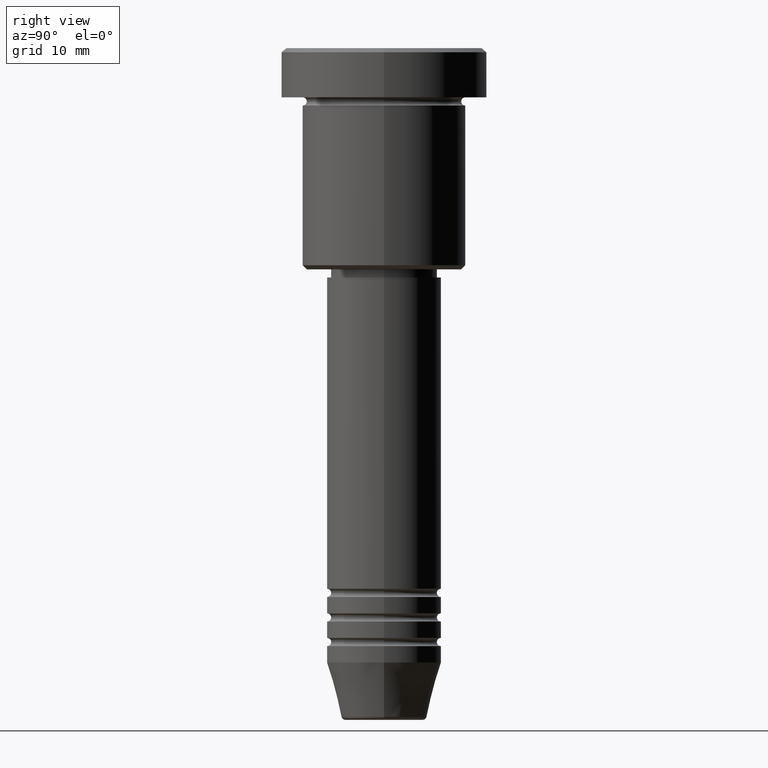
[diagram: clean part render]
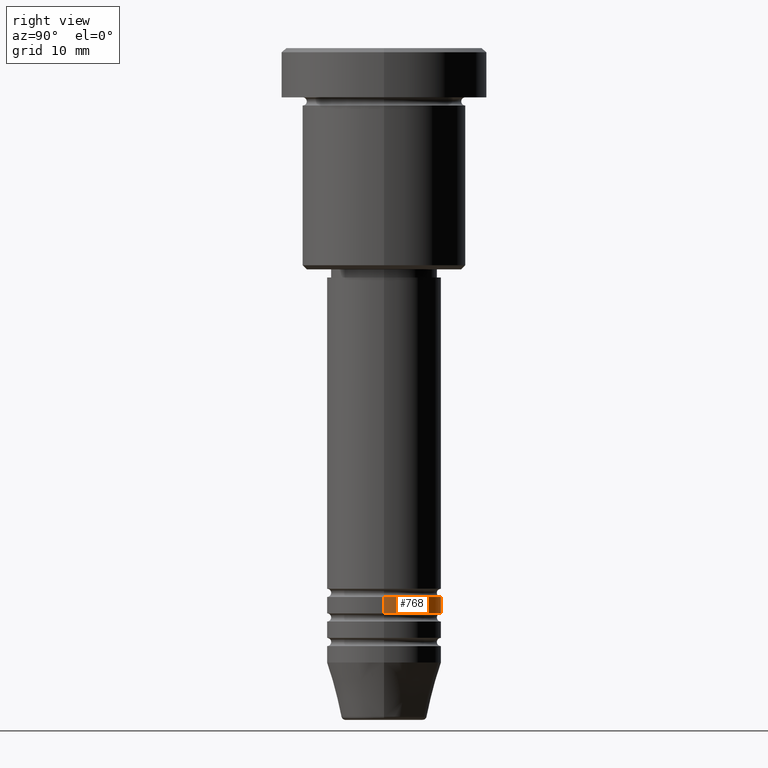
[diagram: same view with one face highlighted and labeled with its STEP entity id]
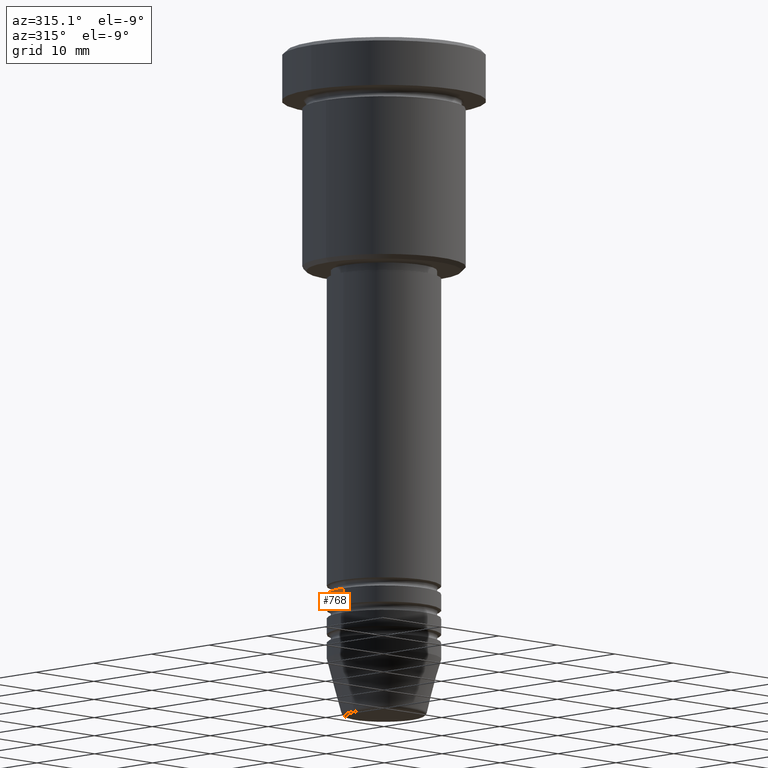
[diagram: same view with one face highlighted and labeled with its STEP entity id]
A machine part, right view. The second image highlights one B-rep face of the part: STEP entity #768.
A second angle (auxiliary view) of the same face is appended — the face is thin or edge-on in the first view.
In plain terms, the highlighted cylindrical surface (partial cylindrical patch) has radius 7 mm, axis along (-0, -0, 1).
Its self-contained STEP definition (entity closure, byte-faithful):
#37 = DIRECTION ( 'NONE',  ( -0.000000000000000000, -0.000000000000000000, 1.000000000000000000 ) ) ;
#57 = DIRECTION ( 'NONE',  ( -0.000000000000000000, -0.000000000000000000, 1.000000000000000000 ) ) ;
#61 = ORIENTED_EDGE ( 'NONE', *, *, #954, .F. ) ;
#83 = EDGE_CURVE ( 'NONE', #144, #342, #811, .T. ) ;
#144 = VERTEX_POINT ( 'NONE', #664 ) ;
#164 = AXIS2_PLACEMENT_3D ( 'NONE', #420, #415, #1149 ) ;
#173 = ORIENTED_EDGE ( 'NONE', *, *, #227, .F. ) ;
#188 = DIRECTION ( 'NONE',  ( 1.000000000000000000, 0.000000000000000000, 0.000000000000000000 ) ) ;
#227 = EDGE_CURVE ( 'NONE', #144, #819, #337, .T. ) ;
#231 = ORIENTED_EDGE ( 'NONE', *, *, #941, .T. ) ;
#249 = LINE ( 'NONE', #1061, #257 ) ;
#257 = VECTOR ( 'NONE', #57, 1000.000000000000000 ) ;
#337 = LINE ( 'NONE', #1067, #615 ) ;
#342 = VERTEX_POINT ( 'NONE', #543 ) ;
#415 = DIRECTION ( 'NONE',  ( -0.000000000000000000, -0.000000000000000000, 1.000000000000000000 ) ) ;
#420 = CARTESIAN_POINT ( 'NONE',  ( 0.000000000000000000, 0.000000000000000000, -66.99999999999998579 ) ) ;
#424 = EDGE_LOOP ( 'NONE', ( #817, #231, #61, #173 ) ) ;
#448 = CYLINDRICAL_SURFACE ( 'NONE', #1136, 7.000000000000000000 ) ;
#479 = CARTESIAN_POINT ( 'NONE',  ( 0.000000000000000000, 0.000000000000000000, -68.99999999999998579 ) ) ;
#503 = DIRECTION ( 'NONE',  ( -0.000000000000000000, -0.000000000000000000, 1.000000000000000000 ) ) ;
#543 = CARTESIAN_POINT ( 'NONE',  ( -7.000000000000000000, 8.572527594031473190E-16, -68.99999999999998579 ) ) ;
#615 = VECTOR ( 'NONE', #503, 1000.000000000000000 ) ;
#644 = CARTESIAN_POINT ( 'NONE',  ( 7.000000000000000000, 0.000000000000000000, -66.99999999999998579 ) ) ;
#664 = CARTESIAN_POINT ( 'NONE',  ( 7.000000000000000000, 0.000000000000000000, -68.99999999999998579 ) ) ;
#720 = FACE_OUTER_BOUND ( 'NONE', #424, .T. ) ;
#768 = ADVANCED_FACE ( 'NONE', ( #720 ), #448, .T. ) ;
#811 = CIRCLE ( 'NONE', #1017, 7.000000000000000000 ) ;
#817 = ORIENTED_EDGE ( 'NONE', *, *, #83, .T. ) ;
#819 = VERTEX_POINT ( 'NONE', #644 ) ;
#875 = CIRCLE ( 'NONE', #164, 7.000000000000000000 ) ;
#904 = VERTEX_POINT ( 'NONE', #1053 ) ;
#922 = DIRECTION ( 'NONE',  ( 1.000000000000000000, 0.000000000000000000, 0.000000000000000000 ) ) ;
#941 = EDGE_CURVE ( 'NONE', #342, #904, #249, .T. ) ;
#954 = EDGE_CURVE ( 'NONE', #819, #904, #875, .T. ) ;
#1017 = AXIS2_PLACEMENT_3D ( 'NONE', #479, #37, #922 ) ;
#1053 = CARTESIAN_POINT ( 'NONE',  ( -7.000000000000000000, 8.572527594031473190E-16, -66.99999999999998579 ) ) ;
#1061 = CARTESIAN_POINT ( 'NONE',  ( -7.000000000000000000, 8.572527594031473190E-16, 0.000000000000000000 ) ) ;
#1067 = CARTESIAN_POINT ( 'NONE',  ( 7.000000000000000000, 0.000000000000000000, 0.000000000000000000 ) ) ;
#1094 = CARTESIAN_POINT ( 'NONE',  ( 0.000000000000000000, 0.000000000000000000, 0.000000000000000000 ) ) ;
#1113 = DIRECTION ( 'NONE',  ( -0.000000000000000000, -0.000000000000000000, 1.000000000000000000 ) ) ;
#1136 = AXIS2_PLACEMENT_3D ( 'NONE', #1094, #1113, #188 ) ;
#1149 = DIRECTION ( 'NONE',  ( 1.000000000000000000, 0.000000000000000000, 0.000000000000000000 ) ) ;